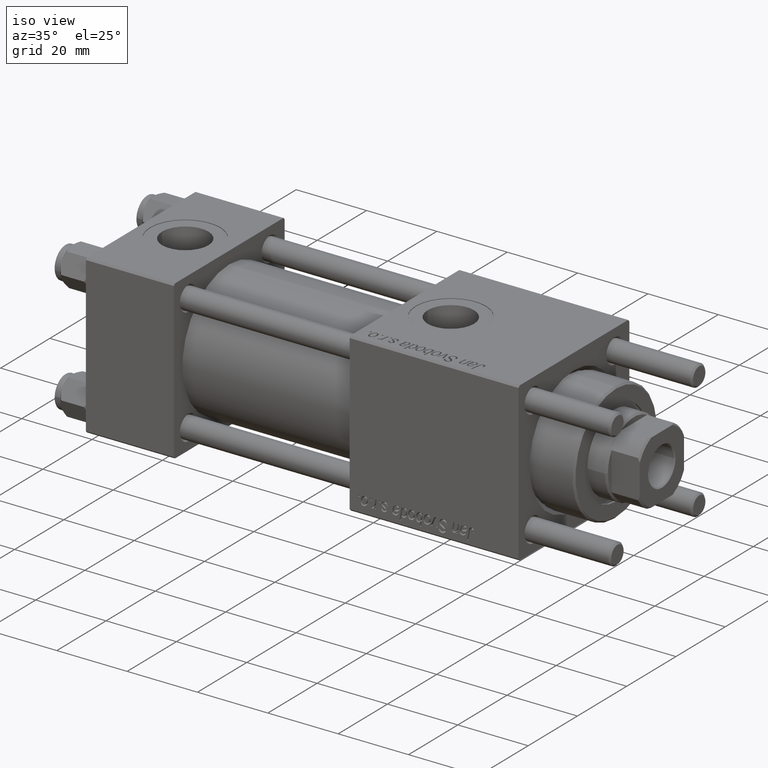
[diagram: clean part render]
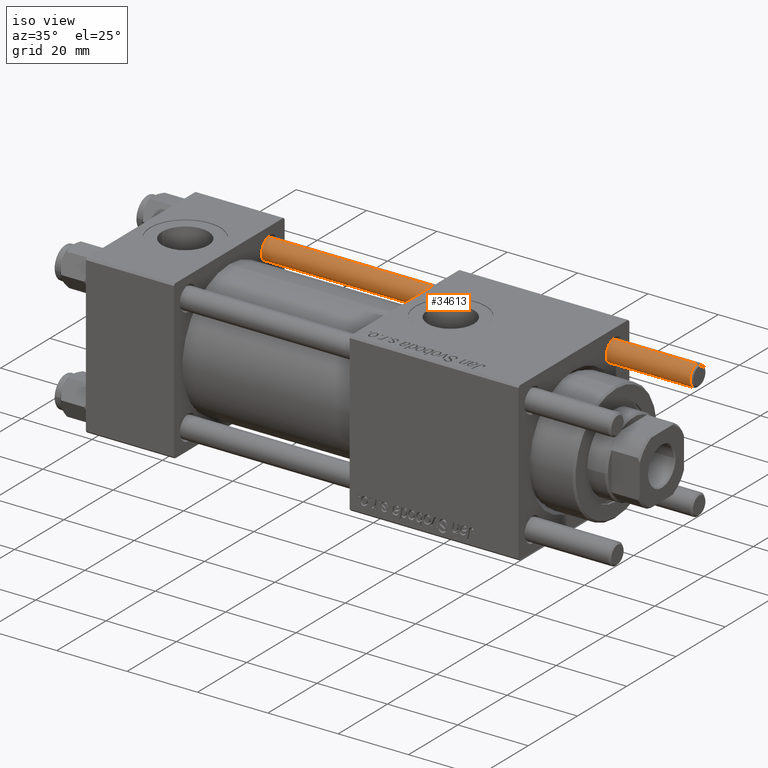
[diagram: same view with one face highlighted and labeled with its STEP entity id]
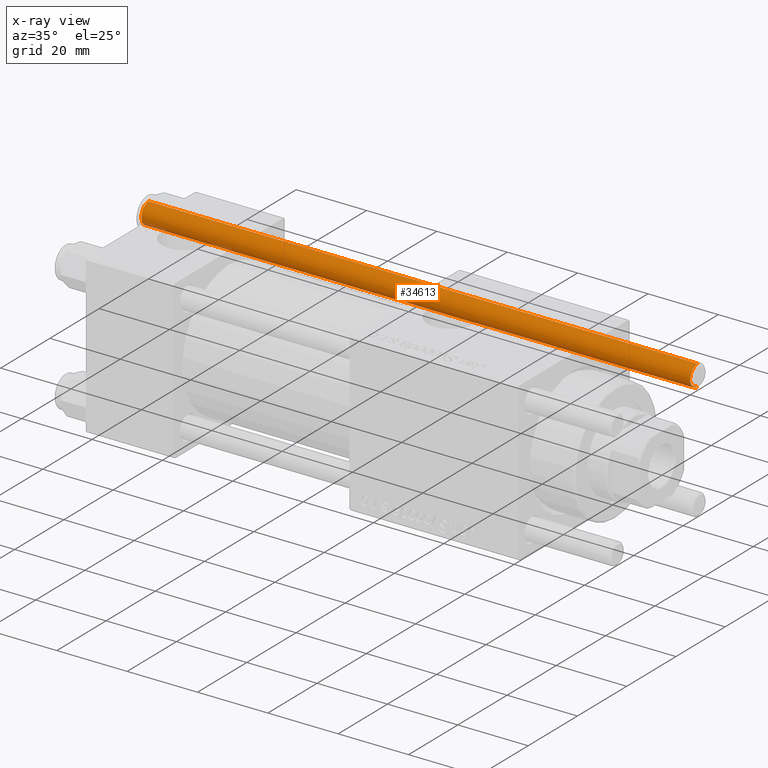
[diagram: x-ray of the same camera — body ghosted, the highlighted face saturated]
A machine part, iso view. The second image highlights one B-rep face of the part: STEP entity #34613.
The next image is the same camera in x-ray: the body ghosted, the highlighted face saturated — about 1% of this face is hidden behind the body in this view.
In plain terms, the highlighted cylindrical surface (edge-blend (fillet) strip) has radius 3 mm, axis along (1, -0, -0).
Its self-contained STEP definition (entity closure, byte-faithful):
#3831 = EDGE_CURVE ( 'NONE', #33417, #27544, #12832, .T. ) ;
#5695 = FACE_OUTER_BOUND ( 'NONE', #56369, .T. ) ;
#6549 = DIRECTION ( 'NONE',  ( -0.000000000000000000, -0.000000000000000000, -1.000000000000000000 ) ) ;
#8209 = DIRECTION ( 'NONE',  ( -0.000000000000000000, -0.000000000000000000, 1.000000000000000000 ) ) ;
#9108 = DIRECTION ( 'NONE',  ( -0.000000000000000000, -0.000000000000000000, -1.000000000000000000 ) ) ;
#10259 = CARTESIAN_POINT ( 'NONE',  ( 3.000000000000000444, 3.673940397442060361E-16, 0.4999999999999726885 ) ) ;
#10796 = EDGE_CURVE ( 'NONE', #14860, #29386, #17335, .T. ) ;
#11948 = DIRECTION ( 'NONE',  ( 1.000000000000000000, 0.000000000000000000, 0.000000000000000000 ) ) ;
#12832 = LINE ( 'NONE', #35856, #43906 ) ;
#14601 = ORIENTED_EDGE ( 'NONE', *, *, #51115, .T. ) ;
#14860 = VERTEX_POINT ( 'NONE', #15027 ) ;
#15027 = CARTESIAN_POINT ( 'NONE',  ( 3.000000000000000444, 3.673940397442060361E-16, 156.5000000000000284 ) ) ;
#17335 = LINE ( 'NONE', #52408, #18352 ) ;
#18352 = VECTOR ( 'NONE', #39216, 1000.000000000000000 ) ;
#19189 = CYLINDRICAL_SURFACE ( 'NONE', #40177, 3.000000000000000444 ) ;
#20168 = EDGE_CURVE ( 'NONE', #27544, #29386, #52451, .T. ) ;
#24001 = CARTESIAN_POINT ( 'NONE',  ( -3.000000000000000444, 0.000000000000000000, 0.4999999999999726885 ) ) ;
#24916 = AXIS2_PLACEMENT_3D ( 'NONE', #39264, #8209, #11948 ) ;
#26397 = DIRECTION ( 'NONE',  ( 1.000000000000000000, 0.000000000000000000, 0.000000000000000000 ) ) ;
#27544 = VERTEX_POINT ( 'NONE', #24001 ) ;
#27819 = CARTESIAN_POINT ( 'NONE',  ( 0.000000000000000000, 0.000000000000000000, 157.0000000000000000 ) ) ;
#29386 = VERTEX_POINT ( 'NONE', #10259 ) ;
#30738 = DIRECTION ( 'NONE',  ( 0.000000000000000000, 0.000000000000000000, -1.000000000000000000 ) ) ;
#32160 = ORIENTED_EDGE ( 'NONE', *, *, #10796, .F. ) ;
#33417 = VERTEX_POINT ( 'NONE', #42899 ) ;
#34613 = ADVANCED_FACE ( 'NONE', ( #5695 ), #19189, .T. ) ;
#34660 = ORIENTED_EDGE ( 'NONE', *, *, #3831, .T. ) ;
#35856 = CARTESIAN_POINT ( 'NONE',  ( -3.000000000000000444, 0.000000000000000000, 157.0000000000000000 ) ) ;
#38698 = AXIS2_PLACEMENT_3D ( 'NONE', #48564, #30738, #26397 ) ;
#38759 = ORIENTED_EDGE ( 'NONE', *, *, #20168, .T. ) ;
#39216 = DIRECTION ( 'NONE',  ( -0.000000000000000000, -0.000000000000000000, -1.000000000000000000 ) ) ;
#39264 = CARTESIAN_POINT ( 'NONE',  ( 0.000000000000000000, 0.000000000000000000, 0.4999999999999726885 ) ) ;
#40177 = AXIS2_PLACEMENT_3D ( 'NONE', #27819, #6549, #50236 ) ;
#42387 = CIRCLE ( 'NONE', #38698, 3.000000000000000444 ) ;
#42899 = CARTESIAN_POINT ( 'NONE',  ( -3.000000000000000444, 0.000000000000000000, 156.5000000000000284 ) ) ;
#43906 = VECTOR ( 'NONE', #9108, 1000.000000000000000 ) ;
#48564 = CARTESIAN_POINT ( 'NONE',  ( 0.000000000000000000, 0.000000000000000000, 156.5000000000000284 ) ) ;
#50236 = DIRECTION ( 'NONE',  ( -1.000000000000000000, 0.000000000000000000, 0.000000000000000000 ) ) ;
#51115 = EDGE_CURVE ( 'NONE', #14860, #33417, #42387, .T. ) ;
#52408 = CARTESIAN_POINT ( 'NONE',  ( 3.000000000000000444, 3.673940397442060361E-16, 157.0000000000000000 ) ) ;
#52451 = CIRCLE ( 'NONE', #24916, 3.000000000000000444 ) ;
#56369 = EDGE_LOOP ( 'NONE', ( #32160, #14601, #34660, #38759 ) ) ;